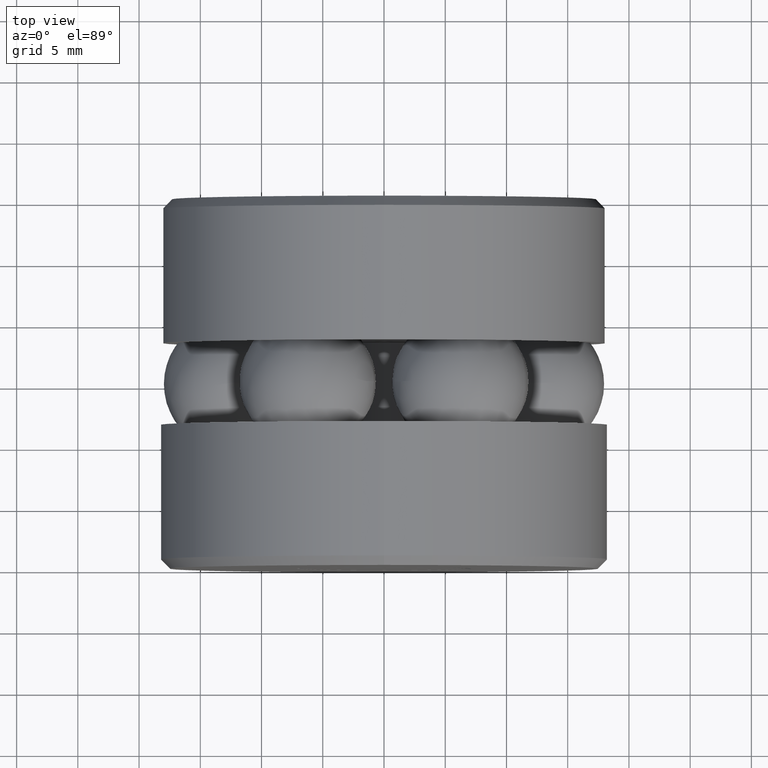
[diagram: clean part render]
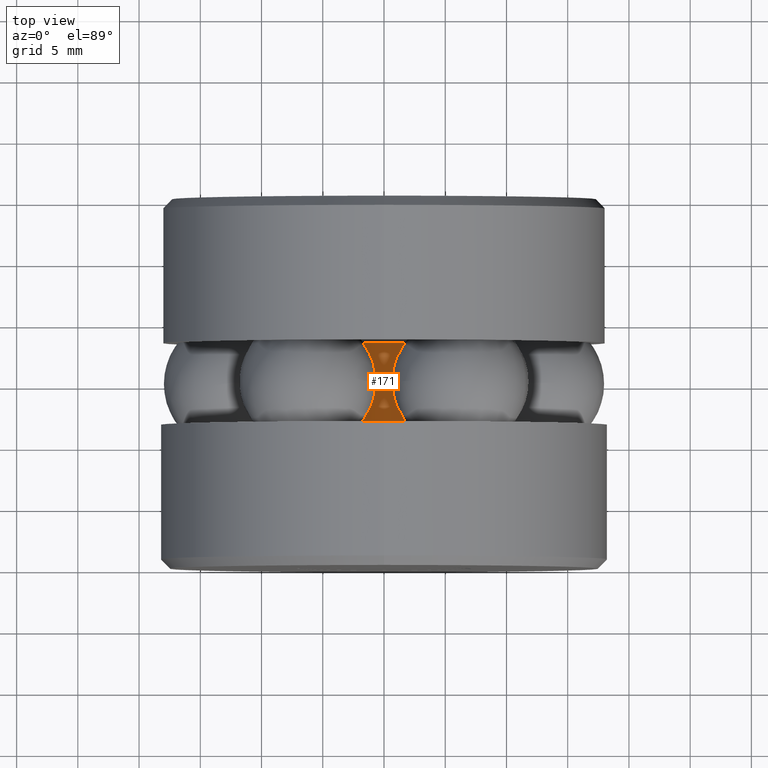
[diagram: same view with one face highlighted and labeled with its STEP entity id]
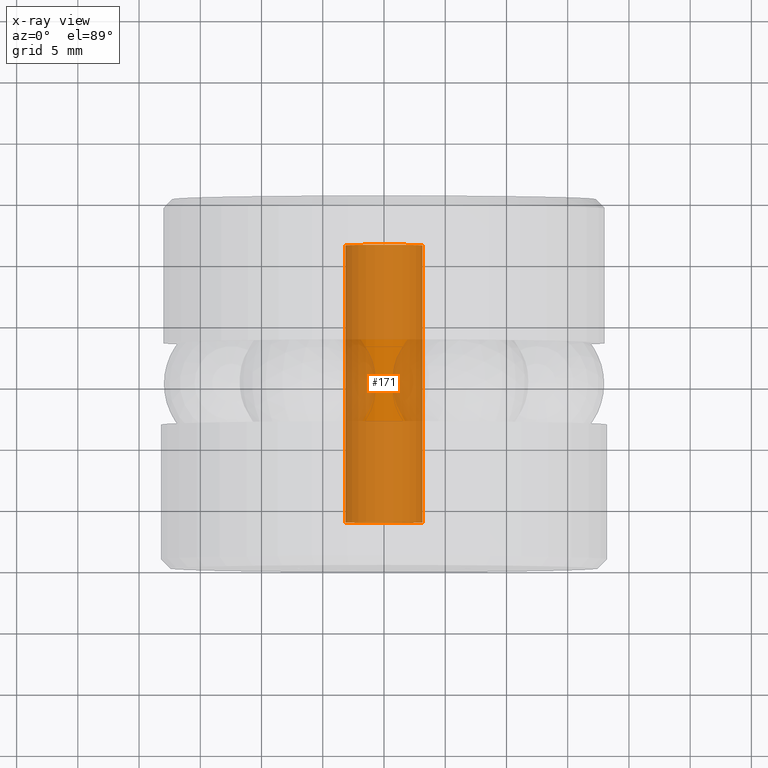
[diagram: x-ray of the same camera — body ghosted, the highlighted face saturated]
A machine part, top view. The second image highlights one B-rep face of the part: STEP entity #171.
The next image is the same camera in x-ray: the body ghosted, the highlighted face saturated — about 90% of this face is hidden behind the body in this view.
In plain terms, the highlighted cylindrical surface (bore or boss wall) has radius 3.175 mm, axis along (-0, 1, -0).
Its self-contained STEP definition (entity closure, byte-faithful):
#18 = DIRECTION ( 'NONE',  ( -0.0000000000000000000, 1.000000000000000000, -0.0000000000000000000 ) ) ;
#20 = DIRECTION ( 'NONE',  ( 0.0000000000000000000, 0.0000000000000000000, 1.000000000000000000 ) ) ;
#83 = CARTESIAN_POINT ( 'NONE',  ( 0.0000000000000000000, 1.039062500000000000, 0.1250000000000001900 ) ) ;
#91 = DIRECTION ( 'NONE',  ( 0.0000000000000000000, 0.0000000000000000000, 1.000000000000000000 ) ) ;
#129 = FACE_OUTER_BOUND ( 'NONE', #521, .T. ) ;
#151 = CARTESIAN_POINT ( 'NONE',  ( 0.0000000000000000000, 1.039062500000000000, 0.0000000000000000000 ) ) ;
#171 = ADVANCED_FACE ( 'NONE', ( #431, #129 ), #413, .T. ) ;
#177 = EDGE_CURVE ( 'NONE', #534, #534, #414, .T. ) ;
#210 = AXIS2_PLACEMENT_3D ( 'NONE', #266, #18, #263 ) ;
#224 = CARTESIAN_POINT ( 'NONE',  ( 0.0000000000000000000, 0.1484375000000001100, 0.0000000000000000000 ) ) ;
#263 = DIRECTION ( 'NONE',  ( 0.0000000000000000000, 0.0000000000000000000, 1.000000000000000000 ) ) ;
#266 = CARTESIAN_POINT ( 'NONE',  ( 0.0000000000000000000, 0.0000000000000000000, 0.0000000000000000000 ) ) ;
#273 = ORIENTED_EDGE ( 'NONE', *, *, #177, .T. ) ;
#289 = DIRECTION ( 'NONE',  ( -0.0000000000000000000, 1.000000000000000000, -0.0000000000000000000 ) ) ;
#292 = EDGE_LOOP ( 'NONE', ( #273 ) ) ;
#299 = AXIS2_PLACEMENT_3D ( 'NONE', #151, #360, #91 ) ;
#311 = ORIENTED_EDGE ( 'NONE', *, *, #330, .F. ) ;
#330 = EDGE_CURVE ( 'NONE', #522, #522, #348, .T. ) ;
#348 = CIRCLE ( 'NONE', #299, 0.1250000000000001900 ) ;
#352 = AXIS2_PLACEMENT_3D ( 'NONE', #224, #289, #20 ) ;
#360 = DIRECTION ( 'NONE',  ( -0.0000000000000000000, 1.000000000000000000, -0.0000000000000000000 ) ) ;
#413 = CYLINDRICAL_SURFACE ( 'NONE', #210, 0.1250000000000001100 ) ;
#414 = CIRCLE ( 'NONE', #352, 0.1250000000000000300 ) ;
#431 = FACE_OUTER_BOUND ( 'NONE', #292, .T. ) ;
#507 = CARTESIAN_POINT ( 'NONE',  ( 0.0000000000000000000, 0.1484375000000001100, 0.1250000000000000300 ) ) ;
#521 = EDGE_LOOP ( 'NONE', ( #311 ) ) ;
#522 = VERTEX_POINT ( 'NONE', #83 ) ;
#534 = VERTEX_POINT ( 'NONE', #507 ) ;